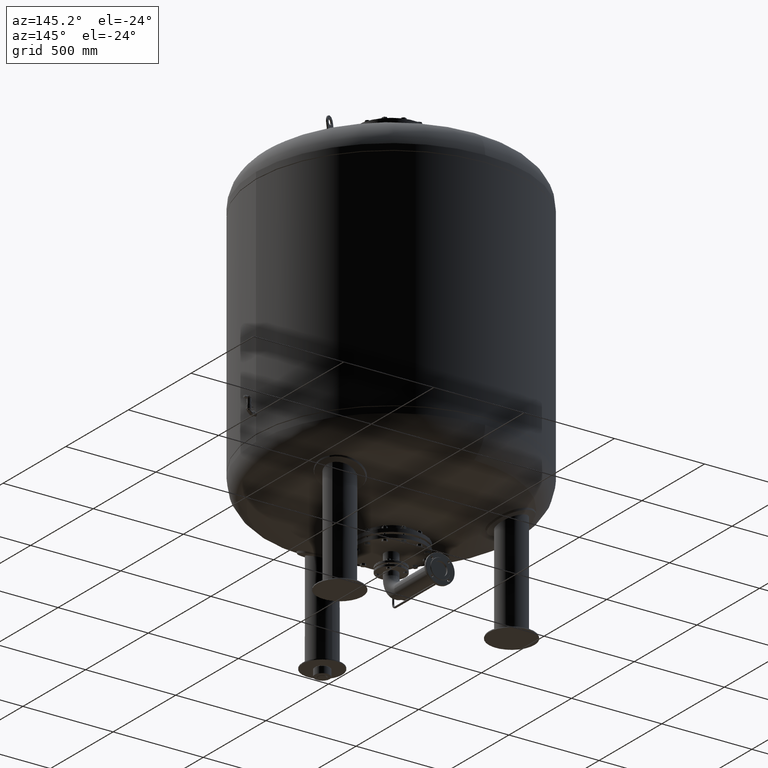
[diagram: clean part render]
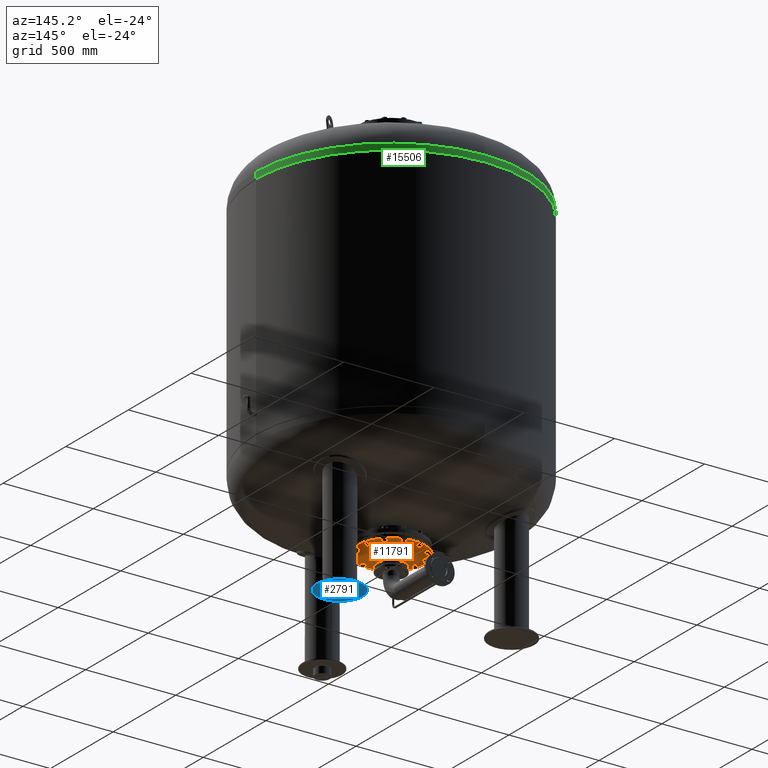
[diagram: same view with three faces highlighted in distinct colors, each labeled with its STEP entity id]
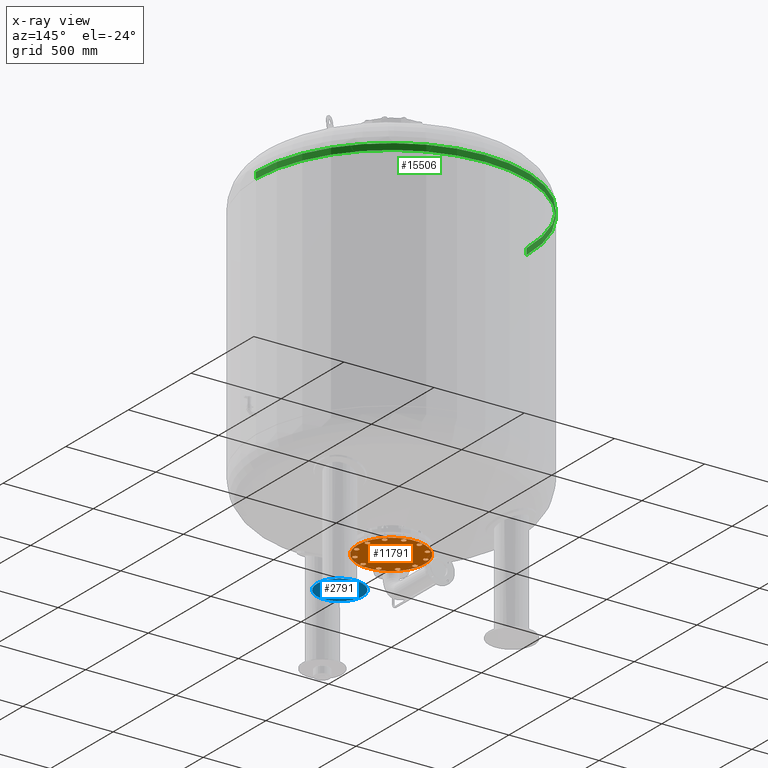
[diagram: x-ray of the same camera — body ghosted, the three highlighted faces saturated]
A machine part, auxiliary view with three faces highlighted in distinct colors.
The next image is the same camera in x-ray (body ghosted, the three faces saturated) — at least one of them is partly hidden behind the body in this view.
Their STEP definitions:

[orange] entity #11791 — the highlighted planar face has unit normal (0, 0, -1).
#3935=CARTESIAN_POINT('',(-38.050000000000018,-4.163799E-015,413.0));
#3936=VERTEX_POINT('',#3935);
#3952=CARTESIAN_POINT('',(38.049999999999983,-8.823426E-015,413.0));
#3953=VERTEX_POINT('',#3952);
#3960=CARTESIAN_POINT('',(-8.604691E-015,-4.163799E-015,413.0));
#3961=DIRECTION('',(0.0,0.0,-1.0));
#3962=DIRECTION('',(-1.0,0.0,0.0));
#3963=AXIS2_PLACEMENT_3D('',#3960,#3961,#3962);
#3964=CIRCLE('',#3963,38.050000000000004);
#3965=EDGE_CURVE('',#3953,#3936,#3964,.T.);
#3975=CARTESIAN_POINT('',(-187.500000000000000,-4.163799E-015,413.000000000000110));
#3976=VERTEX_POINT('',#3975);
#3985=CARTESIAN_POINT('',(187.500000000000000,-2.712517E-014,413.000000000000110));
#3986=VERTEX_POINT('',#3985);
#3987=CARTESIAN_POINT('',(-8.604691E-015,-4.163799E-015,413.000000000000110));
#3988=DIRECTION('',(0.0,0.0,-1.0));
#3989=DIRECTION('',(-1.0,0.0,0.0));
#3990=AXIS2_PLACEMENT_3D('',#3987,#3988,#3989);
#3991=CIRCLE('',#3990,187.500000000000000);
#3992=EDGE_CURVE('',#3986,#3976,#3991,.T.);
#5965=CARTESIAN_POINT('',(43.352190054672320,-175.648982363969960,413.0));
#5966=VERTEX_POINT('',#5965);
#5967=CARTESIAN_POINT('',(55.352190054672313,-168.720779133694460,413.0));
#5968=VERTEX_POINT('',#5967);
#5969=CARTESIAN_POINT('',(43.352190054672320,-175.648982363969960,413.0));
#5970=DIRECTION('',(0.866025403784439,0.500000000000000,0.0));
#5971=VECTOR('',#5970,13.856406460551009);
#5972=LINE('',#5969,#5971);
#5973=EDGE_CURVE('',#5966,#5968,#5972,.T.);
#6005=CARTESIAN_POINT('',(31.352190054672334,-168.720779133694460,413.0));
#6006=VERTEX_POINT('',#6005);
#6007=CARTESIAN_POINT('',(31.352190054672334,-168.720779133694460,413.0));
#6008=DIRECTION('',(0.866025403784439,-0.500000000000000,0.0));
#6009=VECTOR('',#6008,13.856406460551002);
#6010=LINE('',#6007,#6009);
#6011=EDGE_CURVE('',#6006,#5966,#6010,.T.);
#6036=CARTESIAN_POINT('',(31.352190054672349,-154.864372673143440,413.0));
#6037=VERTEX_POINT('',#6036);
#6038=CARTESIAN_POINT('',(31.352190054672349,-154.864372673143440,413.0));
#6039=DIRECTION('',(0.0,-1.0,0.0));
#6040=VECTOR('',#6039,13.856406460551028);
#6041=LINE('',#6038,#6040);
#6042=EDGE_CURVE('',#6037,#6006,#6041,.T.);
#6067=CARTESIAN_POINT('',(43.352190054672320,-147.936169442867940,413.0));
#6068=VERTEX_POINT('',#6067);
#6069=CARTESIAN_POINT('',(43.352190054672320,-147.936169442867940,413.0));
#6070=DIRECTION('',(-0.866025403784438,-0.500000000000000,0.0));
#6071=VECTOR('',#6070,13.856406460550989);
#6072=LINE('',#6069,#6071);
#6073=EDGE_CURVE('',#6068,#6037,#6072,.T.);
#6098=CARTESIAN_POINT('',(55.352190054672313,-154.864372673143440,413.0));
#6099=VERTEX_POINT('',#6098);
#6100=CARTESIAN_POINT('',(55.352190054672313,-168.720779133694460,413.0));
#6101=DIRECTION('',(0.0,1.0,0.0));
#6102=VECTOR('',#6101,13.856406460551028);
#6103=LINE('',#6100,#6102);
#6104=EDGE_CURVE('',#5968,#6099,#6103,.T.);
#6129=CARTESIAN_POINT('',(55.352190054672313,-154.864372673143440,413.0));
#6130=DIRECTION('',(-0.866025403784439,0.500000000000000,0.0));
#6131=VECTOR('',#6130,13.856406460551009);
#6132=LINE('',#6129,#6131);
#6133=EDGE_CURVE('',#6099,#6068,#6132,.T.);
#6439=CARTESIAN_POINT('',(125.368589079022360,-130.440385848746640,413.0));
#6440=VERTEX_POINT('',#6439);
#6441=CARTESIAN_POINT('',(132.296792309297840,-118.440385848746640,413.0));
#6442=VERTEX_POINT('',#6441);
#6443=CARTESIAN_POINT('',(125.368589079022360,-130.440385848746640,413.0));
#6444=DIRECTION('',(0.499999999999999,0.866025403784439,0.0));
#6445=VECTOR('',#6444,13.856406460551007);
#6446=LINE('',#6443,#6445);
#6447=EDGE_CURVE('',#6440,#6442,#6446,.T.);
#6479=CARTESIAN_POINT('',(111.512182618471340,-130.440385848746640,413.0));
#6480=VERTEX_POINT('',#6479);
#6481=CARTESIAN_POINT('',(111.512182618471340,-130.440385848746640,413.0));
#6482=DIRECTION('',(1.0,0.0,0.0));
#6483=VECTOR('',#6482,13.856406460551014);
#6484=LINE('',#6481,#6483);
#6485=EDGE_CURVE('',#6480,#6440,#6484,.T.);
#6510=CARTESIAN_POINT('',(104.583979388195840,-118.440385848746660,413.0));
#6511=VERTEX_POINT('',#6510);
#6512=CARTESIAN_POINT('',(104.583979388195840,-118.440385848746660,413.0));
#6513=DIRECTION('',(0.500000000000000,-0.866025403784439,0.0));
#6514=VECTOR('',#6513,13.856406460551002);
#6515=LINE('',#6512,#6514);
#6516=EDGE_CURVE('',#6511,#6480,#6515,.T.);
#6541=CARTESIAN_POINT('',(111.512182618471340,-106.440385848746640,413.0));
#6542=VERTEX_POINT('',#6541);
#6543=CARTESIAN_POINT('',(111.512182618471340,-106.440385848746640,413.0));
#6544=DIRECTION('',(-0.499999999999999,-0.866025403784439,0.0));
#6545=VECTOR('',#6544,13.856406460551026);
#6546=LINE('',#6543,#6545);
#6547=EDGE_CURVE('',#6542,#6511,#6546,.T.);
#6572=CARTESIAN_POINT('',(125.368589079022340,-106.440385848746640,413.0));
#6573=VERTEX_POINT('',#6572);
#6574=CARTESIAN_POINT('',(132.296792309297840,-118.440385848746640,413.0));
#6575=DIRECTION('',(-0.500000000000000,0.866025403784439,0.0));
#6576=VECTOR('',#6575,13.856406460551014);
#6577=LINE('',#6574,#6576);
#6578=EDGE_CURVE('',#6442,#6573,#6577,.T.);
#6603=CARTESIAN_POINT('',(125.368589079022340,-106.440385848746640,413.0));
#6604=DIRECTION('',(-1.0,0.0,0.0));
#6605=VECTOR('',#6604,13.856406460551000);
#6606=LINE('',#6603,#6605);
#6607=EDGE_CURVE('',#6573,#6542,#6606,.T.);
#6913=CARTESIAN_POINT('',(173.792575903418990,-50.280393284947714,413.0));
#6914=VERTEX_POINT('',#6913);
#6915=CARTESIAN_POINT('',(173.792575903418990,-36.423986824396700,413.0));
#6916=VERTEX_POINT('',#6915);
#6917=CARTESIAN_POINT('',(173.792575903418990,-50.280393284947714,413.0));
#6918=DIRECTION('',(0.0,1.0,0.0));
#6919=VECTOR('',#6918,13.856406460551014);
#6920=LINE('',#6917,#6919);
#6921=EDGE_CURVE('',#6914,#6916,#6920,.T.);
#6953=CARTESIAN_POINT('',(161.792575903418990,-57.208596515223185,413.0));
#6954=VERTEX_POINT('',#6953);
#6955=CARTESIAN_POINT('',(161.792575903418990,-57.208596515223185,413.0));
#6956=DIRECTION('',(0.866025403784440,0.499999999999998,0.0));
#6957=VECTOR('',#6956,13.856406460551000);
#6958=LINE('',#6955,#6957);
#6959=EDGE_CURVE('',#6954,#6914,#6958,.T.);
#6984=CARTESIAN_POINT('',(149.792575903418990,-50.280393284947706,413.0));
#6985=VERTEX_POINT('',#6984);
#6986=CARTESIAN_POINT('',(149.792575903418990,-50.280393284947706,413.0));
#6987=DIRECTION('',(0.866025403784440,-0.499999999999998,0.0));
#6988=VECTOR('',#6987,13.856406460551003);
#6989=LINE('',#6986,#6988);
#6990=EDGE_CURVE('',#6985,#6954,#6989,.T.);
#7015=CARTESIAN_POINT('',(149.792575903419020,-36.423986824396692,413.0));
#7016=VERTEX_POINT('',#7015);
#7017=CARTESIAN_POINT('',(149.792575903419020,-36.423986824396692,413.0));
#7018=DIRECTION('',(0.0,-1.0,0.0));
#7019=VECTOR('',#7018,13.856406460551014);
#7020=LINE('',#7017,#7019);
#7021=EDGE_CURVE('',#7016,#6985,#7020,.T.);
#7046=CARTESIAN_POINT('',(161.792575903418990,-29.495783594121182,413.0));
#7047=VERTEX_POINT('',#7046);
#7048=CARTESIAN_POINT('',(173.792575903418990,-36.423986824396700,413.0));
#7049=DIRECTION('',(-0.866025403784438,0.500000000000000,0.0));
#7050=VECTOR('',#7049,13.856406460551023);
#7051=LINE('',#7048,#7050);
#7052=EDGE_CURVE('',#6916,#7047,#7051,.T.);
#7077=CARTESIAN_POINT('',(161.792575903418990,-29.495783594121182,413.0));
#7078=DIRECTION('',(-0.866025403784438,-0.500000000000001,0.0));
#7079=VECTOR('',#7078,13.856406460550994);
#7080=LINE('',#7077,#7079);
#7081=EDGE_CURVE('',#7047,#7016,#7080,.T.);
#7387=CARTESIAN_POINT('',(175.648982363969960,43.352190054672327,413.0));
#7388=VERTEX_POINT('',#7387);
#7389=CARTESIAN_POINT('',(168.720779133694460,55.352190054672320,413.0));
#7390=VERTEX_POINT('',#7389);
#7391=CARTESIAN_POINT('',(175.648982363969960,43.352190054672327,413.0));
#7392=DIRECTION('',(-0.500000000000000,0.866025403784439,0.0));
#7393=VECTOR('',#7392,13.856406460551009);
#7394=LINE('',#7391,#7393);
#7395=EDGE_CURVE('',#7388,#7390,#7394,.T.);
#7427=CARTESIAN_POINT('',(168.720779133694460,31.352190054672338,413.0));
#7428=VERTEX_POINT('',#7427);
#7429=CARTESIAN_POINT('',(168.720779133694460,31.352190054672338,413.0));
#7430=DIRECTION('',(0.500000000000000,0.866025403784439,0.0));
#7431=VECTOR('',#7430,13.856406460551003);
#7432=LINE('',#7429,#7431);
#7433=EDGE_CURVE('',#7428,#7388,#7432,.T.);
#7458=CARTESIAN_POINT('',(154.864372673143440,31.352190054672352,413.0));
#7459=VERTEX_POINT('',#7458);
#7460=CARTESIAN_POINT('',(154.864372673143440,31.352190054672352,413.0));
#7461=DIRECTION('',(1.0,0.0,0.0));
#7462=VECTOR('',#7461,13.856406460551028);
#7463=LINE('',#7460,#7462);
#7464=EDGE_CURVE('',#7459,#7428,#7463,.T.);
#7489=CARTESIAN_POINT('',(147.936169442867940,43.352190054672327,413.0));
#7490=VERTEX_POINT('',#7489);
#7491=CARTESIAN_POINT('',(147.936169442867940,43.352190054672327,413.0));
#7492=DIRECTION('',(0.500000000000000,-0.866025403784439,0.0));
#7493=VECTOR('',#7492,13.856406460550991);
#7494=LINE('',#7491,#7493);
#7495=EDGE_CURVE('',#7490,#7459,#7494,.T.);
#7520=CARTESIAN_POINT('',(154.864372673143440,55.352190054672320,413.0));
#7521=VERTEX_POINT('',#7520);
#7522=CARTESIAN_POINT('',(168.720779133694460,55.352190054672320,413.0));
#7523=DIRECTION('',(-1.0,0.0,0.0));
#7524=VECTOR('',#7523,13.856406460551028);
#7525=LINE('',#7522,#7524);
#7526=EDGE_CURVE('',#7390,#7521,#7525,.T.);
#7551=CARTESIAN_POINT('',(154.864372673143440,55.352190054672320,413.0));
#7552=DIRECTION('',(-0.500000000000000,-0.866025403784439,0.0));
#7553=VECTOR('',#7552,13.856406460551009);
#7554=LINE('',#7551,#7553);
#7555=EDGE_CURVE('',#7521,#7490,#7554,.T.);
#7861=CARTESIAN_POINT('',(130.440385848746670,125.368589079022270,413.0));
#7862=VERTEX_POINT('',#7861);
#7863=CARTESIAN_POINT('',(118.440385848746690,132.296792309297790,413.0));
#7864=VERTEX_POINT('',#7863);
#7865=CARTESIAN_POINT('',(130.440385848746670,125.368589079022270,413.0));
#7866=DIRECTION('',(-0.866025403784438,0.500000000000001,0.0));
#7867=VECTOR('',#7866,13.856406460551009);
#7868=LINE('',#7865,#7867);
#7869=EDGE_CURVE('',#7862,#7864,#7868,.T.);
#7901=CARTESIAN_POINT('',(130.440385848746670,111.512182618471270,413.0));
#7902=VERTEX_POINT('',#7901);
#7903=CARTESIAN_POINT('',(130.440385848746670,111.512182618471270,413.0));
#7904=DIRECTION('',(0.0,1.0,0.0));
#7905=VECTOR('',#7904,13.856406460551000);
#7906=LINE('',#7903,#7905);
#7907=EDGE_CURVE('',#7902,#7862,#7906,.T.);
#7932=CARTESIAN_POINT('',(118.440385848746700,104.583979388195790,413.0));
#7933=VERTEX_POINT('',#7932);
#7934=CARTESIAN_POINT('',(118.440385848746700,104.583979388195790,413.0));
#7935=DIRECTION('',(0.866025403784439,0.500000000000000,0.0));
#7936=VECTOR('',#7935,13.856406460550982);
#7937=LINE('',#7934,#7936);
#7938=EDGE_CURVE('',#7933,#7902,#7937,.T.);
#7963=CARTESIAN_POINT('',(106.440385848746700,111.512182618471290,413.0));
#7964=VERTEX_POINT('',#7963);
#7965=CARTESIAN_POINT('',(106.440385848746700,111.512182618471290,413.0));
#7966=DIRECTION('',(0.866025403784439,-0.500000000000000,0.0));
#7967=VECTOR('',#7966,13.856406460551014);
#7968=LINE('',#7965,#7967);
#7969=EDGE_CURVE('',#7964,#7933,#7968,.T.);
#7994=CARTESIAN_POINT('',(106.440385848746700,125.368589079022270,413.0));
#7995=VERTEX_POINT('',#7994);
#7996=CARTESIAN_POINT('',(118.440385848746690,132.296792309297790,413.0));
#7997=DIRECTION('',(-0.866025403784438,-0.500000000000001,0.0));
#7998=VECTOR('',#7997,13.856406460551009);
#7999=LINE('',#7996,#7998);
#8000=EDGE_CURVE('',#7864,#7995,#7999,.T.);
#8025=CARTESIAN_POINT('',(106.440385848746700,125.368589079022270,413.0));
#8026=DIRECTION('',(0.0,-1.0,0.0));
#8027=VECTOR('',#8026,13.856406460550986);
#8028=LINE('',#8025,#8027);
#8029=EDGE_CURVE('',#7995,#7964,#8028,.T.);
#8335=CARTESIAN_POINT('',(50.280393284947706,173.792575903418990,413.0));
#8336=VERTEX_POINT('',#8335);
#8337=CARTESIAN_POINT('',(36.423986824396678,173.792575903418940,413.0));
#8338=VERTEX_POINT('',#8337);
#8339=CARTESIAN_POINT('',(50.280393284947706,173.792575903418990,413.0));
#8340=DIRECTION('',(-1.0,0.0,0.0));
#8341=VECTOR('',#8340,13.856406460551028);
#8342=LINE('',#8339,#8341);
#8343=EDGE_CURVE('',#8336,#8338,#8342,.T.);
#8375=CARTESIAN_POINT('',(57.208596515223178,161.792575903418990,413.0));
#8376=VERTEX_POINT('',#8375);
#8377=CARTESIAN_POINT('',(57.208596515223178,161.792575903418990,413.0));
#8378=DIRECTION('',(-0.499999999999998,0.866025403784440,0.0));
#8379=VECTOR('',#8378,13.856406460551000);
#8380=LINE('',#8377,#8379);
#8381=EDGE_CURVE('',#8376,#8336,#8380,.T.);
#8406=CARTESIAN_POINT('',(50.280393284947692,149.792575903418990,413.0));
#8407=VERTEX_POINT('',#8406);
#8408=CARTESIAN_POINT('',(50.280393284947692,149.792575903418990,413.0));
#8409=DIRECTION('',(0.499999999999999,0.866025403784439,0.0));
#8410=VECTOR('',#8409,13.856406460551007);
#8411=LINE('',#8408,#8410);
#8412=EDGE_CURVE('',#8407,#8376,#8411,.T.);
#8437=CARTESIAN_POINT('',(36.423986824396678,149.792575903418990,413.0));
#8438=VERTEX_POINT('',#8437);
#8439=CARTESIAN_POINT('',(36.423986824396678,149.792575903418990,413.0));
#8440=DIRECTION('',(1.0,0.0,0.0));
#8441=VECTOR('',#8440,13.856406460551014);
#8442=LINE('',#8439,#8441);
#8443=EDGE_CURVE('',#8438,#8407,#8442,.T.);
#8468=CARTESIAN_POINT('',(29.495783594121185,161.792575903418990,413.0));
#8469=VERTEX_POINT('',#8468);
#8470=CARTESIAN_POINT('',(36.423986824396678,173.792575903418940,413.0));
#8471=DIRECTION('',(-0.500000000000001,-0.866025403784438,0.0));
#8472=VECTOR('',#8471,13.856406460550961);
#8473=LINE('',#8470,#8472);
#8474=EDGE_CURVE('',#8338,#8469,#8473,.T.);
#8499=CARTESIAN_POINT('',(29.495783594121185,161.792575903418990,413.0));
#8500=DIRECTION('',(0.499999999999999,-0.866025403784439,0.0));
#8501=VECTOR('',#8500,13.856406460551010);
#8502=LINE('',#8499,#8501);
#8503=EDGE_CURVE('',#8469,#8438,#8502,.T.);
#8809=CARTESIAN_POINT('',(-43.352190054672327,175.648982363969990,413.0));
#8810=VERTEX_POINT('',#8809);
#8811=CARTESIAN_POINT('',(-55.352190054672306,168.720779133694460,413.0));
#8812=VERTEX_POINT('',#8811);
#8813=CARTESIAN_POINT('',(-43.352190054672327,175.648982363969990,413.0));
#8814=DIRECTION('',(-0.866025403784438,-0.500000000000002,0.0));
#8815=VECTOR('',#8814,13.856406460551009);
#8816=LINE('',#8813,#8815);
#8817=EDGE_CURVE('',#8810,#8812,#8816,.T.);
#8849=CARTESIAN_POINT('',(-31.352190054672313,168.720779133694490,413.0));
#8850=VERTEX_POINT('',#8849);
#8851=CARTESIAN_POINT('',(-31.352190054672313,168.720779133694490,413.0));
#8852=DIRECTION('',(-0.866025403784439,0.499999999999999,0.0));
#8853=VECTOR('',#8852,13.856406460551026);
#8854=LINE('',#8851,#8853);
#8855=EDGE_CURVE('',#8850,#8810,#8854,.T.);
#8880=CARTESIAN_POINT('',(-31.352190054672327,154.864372673143460,413.0));
#8881=VERTEX_POINT('',#8880);
#8882=CARTESIAN_POINT('',(-31.352190054672327,154.864372673143460,413.0));
#8883=DIRECTION('',(0.0,1.0,0.0));
#8884=VECTOR('',#8883,13.856406460551028);
#8885=LINE('',#8882,#8884);
#8886=EDGE_CURVE('',#8881,#8850,#8885,.T.);
#8911=CARTESIAN_POINT('',(-43.352190054672334,147.936169442867940,413.0));
#8912=VERTEX_POINT('',#8911);
#8913=CARTESIAN_POINT('',(-43.352190054672334,147.936169442867940,413.0));
#8914=DIRECTION('',(0.866025403784438,0.500000000000001,0.0));
#8915=VECTOR('',#8914,13.856406460551034);
#8916=LINE('',#8913,#8915);
#8917=EDGE_CURVE('',#8912,#8881,#8916,.T.);
#8942=CARTESIAN_POINT('',(-55.352190054672306,154.864372673143460,413.0));
#8943=VERTEX_POINT('',#8942);
#8944=CARTESIAN_POINT('',(-55.352190054672306,168.720779133694460,413.0));
#8945=DIRECTION('',(0.0,-1.0,0.0));
#8946=VECTOR('',#8945,13.856406460551000);
#8947=LINE('',#8944,#8946);
#8948=EDGE_CURVE('',#8812,#8943,#8947,.T.);
#8973=CARTESIAN_POINT('',(-55.352190054672306,154.864372673143460,413.0));
#8974=DIRECTION('',(0.866025403784437,-0.500000000000002,0.0));
#8975=VECTOR('',#8974,13.856406460551003);
#8976=LINE('',#8973,#8975);
#8977=EDGE_CURVE('',#8943,#8912,#8976,.T.);
#9283=CARTESIAN_POINT('',(-125.368589079022270,130.440385848746700,413.0));
#9284=VERTEX_POINT('',#9283);
#9285=CARTESIAN_POINT('',(-132.296792309297790,118.440385848746690,413.0));
#9286=VERTEX_POINT('',#9285);
#9287=CARTESIAN_POINT('',(-125.368589079022270,130.440385848746700,413.0));
#9288=DIRECTION('',(-0.500000000000000,-0.866025403784439,0.0));
#9289=VECTOR('',#9288,13.856406460551034);
#9290=LINE('',#9287,#9289);
#9291=EDGE_CURVE('',#9284,#9286,#9290,.T.);
#9323=CARTESIAN_POINT('',(-111.512182618471270,130.440385848746670,413.0));
#9324=VERTEX_POINT('',#9323);
#9325=CARTESIAN_POINT('',(-111.512182618471270,130.440385848746670,413.0));
#9326=DIRECTION('',(-1.0,0.0,0.0));
#9327=VECTOR('',#9326,13.856406460551000);
#9328=LINE('',#9325,#9327);
#9329=EDGE_CURVE('',#9324,#9284,#9328,.T.);
#9354=CARTESIAN_POINT('',(-104.583979388195760,118.440385848746690,413.0));
#9355=VERTEX_POINT('',#9354);
#9356=CARTESIAN_POINT('',(-104.583979388195760,118.440385848746690,413.0));
#9357=DIRECTION('',(-0.500000000000001,0.866025403784438,0.0));
#9358=VECTOR('',#9357,13.856406460551009);
#9359=LINE('',#9356,#9358);
#9360=EDGE_CURVE('',#9355,#9324,#9359,.T.);
#9385=CARTESIAN_POINT('',(-111.512182618471270,106.440385848746700,413.0));
#9386=VERTEX_POINT('',#9385);
#9387=CARTESIAN_POINT('',(-111.512182618471270,106.440385848746700,413.0));
#9388=DIRECTION('',(0.500000000000001,0.866025403784438,0.0));
#9389=VECTOR('',#9388,13.856406460551009);
#9390=LINE('',#9387,#9389);
#9391=EDGE_CURVE('',#9386,#9355,#9390,.T.);
#9416=CARTESIAN_POINT('',(-125.368589079022270,106.440385848746700,413.0));
#9417=VERTEX_POINT('',#9416);
#9418=CARTESIAN_POINT('',(-132.296792309297790,118.440385848746690,413.0));
#9419=DIRECTION('',(0.500000000000001,-0.866025403784438,0.0));
#9420=VECTOR('',#9419,13.856406460551009);
#9421=LINE('',#9418,#9420);
#9422=EDGE_CURVE('',#9286,#9417,#9421,.T.);
#9447=CARTESIAN_POINT('',(-125.368589079022270,106.440385848746700,413.0));
#9448=DIRECTION('',(1.0,0.0,0.0));
#9449=VECTOR('',#9448,13.856406460551000);
#9450=LINE('',#9447,#9449);
#9451=EDGE_CURVE('',#9417,#9386,#9450,.T.);
#9757=CARTESIAN_POINT('',(-173.792575903418960,50.280393284947714,413.0));
#9758=VERTEX_POINT('',#9757);
#9759=CARTESIAN_POINT('',(-173.792575903418960,36.423986824396714,413.0));
#9760=VERTEX_POINT('',#9759);
#9761=CARTESIAN_POINT('',(-173.792575903418960,50.280393284947714,413.0));
#9762=DIRECTION('',(0.0,-1.0,0.0));
#9763=VECTOR('',#9762,13.856406460551000);
#9764=LINE('',#9761,#9763);
#9765=EDGE_CURVE('',#9758,#9760,#9764,.T.);
#9797=CARTESIAN_POINT('',(-161.792575903419020,57.208596515223206,413.0));
#9798=VERTEX_POINT('',#9797);
#9799=CARTESIAN_POINT('',(-161.792575903419020,57.208596515223206,413.0));
#9800=DIRECTION('',(-0.866025403784438,-0.500000000000001,0.0));
#9801=VECTOR('',#9800,13.856406460550961);
#9802=LINE('',#9799,#9801);
#9803=EDGE_CURVE('',#9798,#9758,#9802,.T.);
#9828=CARTESIAN_POINT('',(-149.792575903418990,50.280393284947714,413.0));
#9829=VERTEX_POINT('',#9828);
#9830=CARTESIAN_POINT('',(-149.792575903418990,50.280393284947714,413.0));
#9831=DIRECTION('',(-0.866025403784440,0.499999999999998,0.0));
#9832=VECTOR('',#9831,13.856406460551035);
#9833=LINE('',#9830,#9832);
#9834=EDGE_CURVE('',#9829,#9798,#9833,.T.);
#9859=CARTESIAN_POINT('',(-149.792575903418990,36.423986824396685,413.0));
#9860=VERTEX_POINT('',#9859);
#9861=CARTESIAN_POINT('',(-149.792575903418990,36.423986824396685,413.0));
#9862=DIRECTION('',(0.0,1.0,0.0));
#9863=VECTOR('',#9862,13.856406460551028);
#9864=LINE('',#9861,#9863);
#9865=EDGE_CURVE('',#9860,#9829,#9864,.T.);
#9890=CARTESIAN_POINT('',(-161.792575903418990,29.495783594121210,413.0));
#9891=VERTEX_POINT('',#9890);
#9892=CARTESIAN_POINT('',(-173.792575903418960,36.423986824396714,413.0));
#9893=DIRECTION('',(0.866025403784438,-0.500000000000001,0.0));
#9894=VECTOR('',#9893,13.856406460550991);
#9895=LINE('',#9892,#9894);
#9896=EDGE_CURVE('',#9760,#9891,#9895,.T.);
#9921=CARTESIAN_POINT('',(-161.792575903418990,29.495783594121210,413.0));
#9922=DIRECTION('',(0.866025403784440,0.499999999999998,0.0));
#9923=VECTOR('',#9922,13.856406460551002);
#9924=LINE('',#9921,#9923);
#9925=EDGE_CURVE('',#9891,#9860,#9924,.T.);
#10231=CARTESIAN_POINT('',(-175.648982363969990,-43.352190054672270,413.0));
#10232=VERTEX_POINT('',#10231);
#10233=CARTESIAN_POINT('',(-168.720779133694490,-55.352190054672263,413.0));
#10234=VERTEX_POINT('',#10233);
#10235=CARTESIAN_POINT('',(-175.648982363969990,-43.352190054672270,413.0));
#10236=DIRECTION('',(0.500000000000000,-0.866025403784439,0.0));
#10237=VECTOR('',#10236,13.856406460551009);
#10238=LINE('',#10235,#10237);
#10239=EDGE_CURVE('',#10232,#10234,#10238,.T.);
#10271=CARTESIAN_POINT('',(-168.720779133694490,-31.352190054672281,413.0));
#10272=VERTEX_POINT('',#10271);
#10273=CARTESIAN_POINT('',(-168.720779133694490,-31.352190054672281,413.0));
#10274=DIRECTION('',(-0.500000000000000,-0.866025403784439,0.0));
#10275=VECTOR('',#10274,13.856406460551003);
#10276=LINE('',#10273,#10275);
#10277=EDGE_CURVE('',#10272,#10232,#10276,.T.);
#10302=CARTESIAN_POINT('',(-154.864372673143460,-31.352190054672299,413.0));
#10303=VERTEX_POINT('',#10302);
#10304=CARTESIAN_POINT('',(-154.864372673143460,-31.352190054672299,413.0));
#10305=DIRECTION('',(-1.0,0.0,0.0));
#10306=VECTOR('',#10305,13.856406460551028);
#10307=LINE('',#10304,#10306);
#10308=EDGE_CURVE('',#10303,#10272,#10307,.T.);
#10333=CARTESIAN_POINT('',(-147.936169442867960,-43.352190054672299,413.0));
#10334=VERTEX_POINT('',#10333);
#10335=CARTESIAN_POINT('',(-147.936169442867960,-43.352190054672299,413.0));
#10336=DIRECTION('',(-0.500000000000000,0.866025403784439,0.0));
#10337=VECTOR('',#10336,13.856406460551014);
#10338=LINE('',#10335,#10337);
#10339=EDGE_CURVE('',#10334,#10303,#10338,.T.);
#10364=CARTESIAN_POINT('',(-154.864372673143460,-55.352190054672263,413.0));
#10365=VERTEX_POINT('',#10364);
#10366=CARTESIAN_POINT('',(-168.720779133694490,-55.352190054672263,413.0));
#10367=DIRECTION('',(1.0,0.0,0.0));
#10368=VECTOR('',#10367,13.856406460551028);
#10369=LINE('',#10366,#10368);
#10370=EDGE_CURVE('',#10234,#10365,#10369,.T.);
#10395=CARTESIAN_POINT('',(-154.864372673143460,-55.352190054672263,413.0));
#10396=DIRECTION('',(0.500000000000001,0.866025403784438,0.0));
#10397=VECTOR('',#10396,13.856406460550984);
#10398=LINE('',#10395,#10397);
#10399=EDGE_CURVE('',#10365,#10334,#10398,.T.);
#10705=CARTESIAN_POINT('',(-130.440385848746730,-125.368589079022260,413.0));
#10706=VERTEX_POINT('',#10705);
#10707=CARTESIAN_POINT('',(-118.440385848746730,-132.296792309297760,413.0));
#10708=VERTEX_POINT('',#10707);
#10709=CARTESIAN_POINT('',(-130.440385848746730,-125.368589079022260,413.0));
#10710=DIRECTION('',(0.866025403784439,-0.500000000000000,0.0));
#10711=VECTOR('',#10710,13.856406460551014);
#10712=LINE('',#10709,#10711);
#10713=EDGE_CURVE('',#10706,#10708,#10712,.T.);
#10745=CARTESIAN_POINT('',(-130.440385848746700,-111.512182618471260,413.0));
#10746=VERTEX_POINT('',#10745);
#10747=CARTESIAN_POINT('',(-130.440385848746700,-111.512182618471260,413.0));
#10748=DIRECTION('',(0.0,-1.0,0.0));
#10749=VECTOR('',#10748,13.856406460551000);
#10750=LINE('',#10747,#10749);
#10751=EDGE_CURVE('',#10746,#10706,#10750,.T.);
#10776=CARTESIAN_POINT('',(-118.440385848746700,-104.583979388195760,413.0));
#10777=VERTEX_POINT('',#10776);
#10778=CARTESIAN_POINT('',(-118.440385848746700,-104.583979388195760,413.0));
#10779=DIRECTION('',(-0.866025403784439,-0.500000000000000,0.0));
#10780=VECTOR('',#10779,13.856406460551014);
#10781=LINE('',#10778,#10780);
#10782=EDGE_CURVE('',#10777,#10746,#10781,.T.);
#10807=CARTESIAN_POINT('',(-106.440385848746710,-111.512182618471270,413.0));
#10808=VERTEX_POINT('',#10807);
#10809=CARTESIAN_POINT('',(-106.440385848746710,-111.512182618471270,413.0));
#10810=DIRECTION('',(-0.866025403784438,0.500000000000001,0.0));
#10811=VECTOR('',#10810,13.856406460551009);
#10812=LINE('',#10809,#10811);
#10813=EDGE_CURVE('',#10808,#10777,#10812,.T.);
#10838=CARTESIAN_POINT('',(-106.440385848746710,-125.368589079022260,413.0));
#10839=VERTEX_POINT('',#10838);
#10840=CARTESIAN_POINT('',(-118.440385848746730,-132.296792309297760,413.0));
#10841=DIRECTION('',(0.866025403784439,0.499999999999999,0.0));
#10842=VECTOR('',#10841,13.856406460551026);
#10843=LINE('',#10840,#10842);
#10844=EDGE_CURVE('',#10708,#10839,#10843,.T.);
#10869=CARTESIAN_POINT('',(-106.440385848746710,-125.368589079022260,413.0));
#10870=DIRECTION('',(0.0,1.0,0.0));
#10871=VECTOR('',#10870,13.856406460550986);
#10872=LINE('',#10869,#10871);
#10873=EDGE_CURVE('',#10839,#10808,#10872,.T.);
#11475=CARTESIAN_POINT('',(-50.280393284947756,-173.792575903418960,413.0));
#11476=VERTEX_POINT('',#11475);
#11477=CARTESIAN_POINT('',(-36.423986824396742,-173.792575903418960,413.0));
#11478=VERTEX_POINT('',#11477);
#11479=CARTESIAN_POINT('',(-50.280393284947756,-173.792575903418960,413.0));
#11480=DIRECTION('',(1.0,0.0,0.0));
#11481=VECTOR('',#11480,13.856406460551014);
#11482=LINE('',#11479,#11481);
#11483=EDGE_CURVE('',#11476,#11478,#11482,.T.);
#11515=CARTESIAN_POINT('',(-57.208596515223249,-161.792575903418990,413.0));
#11516=VERTEX_POINT('',#11515);
#11517=CARTESIAN_POINT('',(-57.208596515223249,-161.792575903418990,413.0));
#11518=DIRECTION('',(0.500000000000000,-0.866025403784439,0.0));
#11519=VECTOR('',#11518,13.856406460550986);
#11520=LINE('',#11517,#11519);
#11521=EDGE_CURVE('',#11516,#11476,#11520,.T.);
#11546=CARTESIAN_POINT('',(-50.280393284947735,-149.792575903418990,413.0));
#11547=VERTEX_POINT('',#11546);
#11548=CARTESIAN_POINT('',(-50.280393284947735,-149.792575903418990,413.0));
#11549=DIRECTION('',(-0.500000000000000,-0.866025403784438,0.0));
#11550=VECTOR('',#11549,13.856406460551021);
#11551=LINE('',#11548,#11550);
#11552=EDGE_CURVE('',#11547,#11516,#11551,.T.);
#11577=CARTESIAN_POINT('',(-36.423986824396721,-149.792575903418990,413.0));
#11578=VERTEX_POINT('',#11577);
#11579=CARTESIAN_POINT('',(-36.423986824396721,-149.792575903418990,413.0));
#11580=DIRECTION('',(-1.0,0.0,0.0));
#11581=VECTOR('',#11580,13.856406460551014);
#11582=LINE('',#11579,#11581);
#11583=EDGE_CURVE('',#11578,#11547,#11582,.T.);
#11608=CARTESIAN_POINT('',(-29.495783594121228,-161.792575903418990,413.0));
#11609=VERTEX_POINT('',#11608);
#11610=CARTESIAN_POINT('',(-36.423986824396742,-173.792575903418960,413.0));
#11611=DIRECTION('',(0.500000000000001,0.866025403784438,0.0));
#11612=VECTOR('',#11611,13.856406460550996);
#11613=LINE('',#11610,#11612);
#11614=EDGE_CURVE('',#11478,#11609,#11613,.T.);
#11639=CARTESIAN_POINT('',(-29.495783594121228,-161.792575903418990,413.0));
#11640=DIRECTION('',(-0.499999999999999,0.866025403784439,0.0));
#11641=VECTOR('',#11640,13.856406460551010);
#11642=LINE('',#11639,#11641);
#11643=EDGE_CURVE('',#11609,#11578,#11642,.T.);
#11670=CARTESIAN_POINT('',(-19.025000000000009,-4.163799E-015,413.0));
#11671=DIRECTION('',(0.0,0.0,-1.0));
#11672=DIRECTION('',(0.0,-1.0,0.0));
#11673=AXIS2_PLACEMENT_3D('',#11670,#11671,#11672);
#11674=PLANE('',#11673);
#11675=CARTESIAN_POINT('',(-8.604691E-015,-4.163799E-015,413.000000000000110));
#11676=DIRECTION('',(0.0,0.0,-1.0));
#11677=DIRECTION('',(-1.0,0.0,0.0));
#11678=AXIS2_PLACEMENT_3D('',#11675,#11676,#11677);
#11679=CIRCLE('',#11678,187.500000000000000);
#11680=EDGE_CURVE('',#3976,#3986,#11679,.T.);
#11681=ORIENTED_EDGE('',*,*,#11680,.T.);
#11682=ORIENTED_EDGE('',*,*,#3992,.T.);
#11683=EDGE_LOOP('',(#11681,#11682));
#11684=FACE_OUTER_BOUND('',#11683,.T.);
#11685=ORIENTED_EDGE('',*,*,#5973,.T.);
#11686=ORIENTED_EDGE('',*,*,#6104,.T.);
#11687=ORIENTED_EDGE('',*,*,#6133,.T.);
#11688=ORIENTED_EDGE('',*,*,#6073,.T.);
#11689=ORIENTED_EDGE('',*,*,#6042,.T.);
#11690=ORIENTED_EDGE('',*,*,#6011,.T.);
#11691=EDGE_LOOP('',(#11685,#11686,#11687,#11688,#11689,#11690));
#11692=FACE_BOUND('',#11691,.T.);
#11693=ORIENTED_EDGE('',*,*,#6447,.T.);
#11694=ORIENTED_EDGE('',*,*,#6578,.T.);
#11695=ORIENTED_EDGE('',*,*,#6607,.T.);
#11696=ORIENTED_EDGE('',*,*,#6547,.T.);
#11697=ORIENTED_EDGE('',*,*,#6516,.T.);
#11698=ORIENTED_EDGE('',*,*,#6485,.T.);
#11699=EDGE_LOOP('',(#11693,#11694,#11695,#11696,#11697,#11698));
#11700=FACE_BOUND('',#11699,.T.);
#11701=ORIENTED_EDGE('',*,*,#6921,.T.);
#11702=ORIENTED_EDGE('',*,*,#7052,.T.);
#11703=ORIENTED_EDGE('',*,*,#7081,.T.);
#11704=ORIENTED_EDGE('',*,*,#7021,.T.);
#11705=ORIENTED_EDGE('',*,*,#6990,.T.);
#11706=ORIENTED_EDGE('',*,*,#6959,.T.);
#11707=EDGE_LOOP('',(#11701,#11702,#11703,#11704,#11705,#11706));
#11708=FACE_BOUND('',#11707,.T.);
#11709=ORIENTED_EDGE('',*,*,#7395,.T.);
#11710=ORIENTED_EDGE('',*,*,#7526,.T.);
#11711=ORIENTED_EDGE('',*,*,#7555,.T.);
#11712=ORIENTED_EDGE('',*,*,#7495,.T.);
#11713=ORIENTED_EDGE('',*,*,#7464,.T.);
#11714=ORIENTED_EDGE('',*,*,#7433,.T.);
#11715=EDGE_LOOP('',(#11709,#11710,#11711,#11712,#11713,#11714));
#11716=FACE_BOUND('',#11715,.T.);
#11717=ORIENTED_EDGE('',*,*,#7869,.T.);
#11718=ORIENTED_EDGE('',*,*,#8000,.T.);
#11719=ORIENTED_EDGE('',*,*,#8029,.T.);
#11720=ORIENTED_EDGE('',*,*,#7969,.T.);
#11721=ORIENTED_EDGE('',*,*,#7938,.T.);
#11722=ORIENTED_EDGE('',*,*,#7907,.T.);
#11723=EDGE_LOOP('',(#11717,#11718,#11719,#11720,#11721,#11722));
#11724=FACE_BOUND('',#11723,.T.);
#11725=ORIENTED_EDGE('',*,*,#8343,.T.);
#11726=ORIENTED_EDGE('',*,*,#8474,.T.);
#11727=ORIENTED_EDGE('',*,*,#8503,.T.);
#11728=ORIENTED_EDGE('',*,*,#8443,.T.);
#11729=ORIENTED_EDGE('',*,*,#8412,.T.);
#11730=ORIENTED_EDGE('',*,*,#8381,.T.);
#11731=EDGE_LOOP('',(#11725,#11726,#11727,#11728,#11729,#11730));
#11732=FACE_BOUND('',#11731,.T.);
#11733=ORIENTED_EDGE('',*,*,#8817,.T.);
#11734=ORIENTED_EDGE('',*,*,#8948,.T.);
#11735=ORIENTED_EDGE('',*,*,#8977,.T.);
#11736=ORIENTED_EDGE('',*,*,#8917,.T.);
#11737=ORIENTED_EDGE('',*,*,#8886,.T.);
#11738=ORIENTED_EDGE('',*,*,#8855,.T.);
#11739=EDGE_LOOP('',(#11733,#11734,#11735,#11736,#11737,#11738));
#11740=FACE_BOUND('',#11739,.T.);
#11741=ORIENTED_EDGE('',*,*,#9291,.T.);
#11742=ORIENTED_EDGE('',*,*,#9422,.T.);
#11743=ORIENTED_EDGE('',*,*,#9451,.T.);
#11744=ORIENTED_EDGE('',*,*,#9391,.T.);
#11745=ORIENTED_EDGE('',*,*,#9360,.T.);
#11746=ORIENTED_EDGE('',*,*,#9329,.T.);
#11747=EDGE_LOOP('',(#11741,#11742,#11743,#11744,#11745,#11746));
#11748=FACE_BOUND('',#11747,.T.);
#11749=ORIENTED_EDGE('',*,*,#9765,.T.);
#11750=ORIENTED_EDGE('',*,*,#9896,.T.);
#11751=ORIENTED_EDGE('',*,*,#9925,.T.);
#11752=ORIENTED_EDGE('',*,*,#9865,.T.);
#11753=ORIENTED_EDGE('',*,*,#9834,.T.);
#11754=ORIENTED_EDGE('',*,*,#9803,.T.);
#11755=EDGE_LOOP('',(#11749,#11750,#11751,#11752,#11753,#11754));
#11756=FACE_BOUND('',#11755,.T.);
#11757=ORIENTED_EDGE('',*,*,#10239,.T.);
#11758=ORIENTED_EDGE('',*,*,#10370,.T.);
#11759=ORIENTED_EDGE('',*,*,#10399,.T.);
#11760=ORIENTED_EDGE('',*,*,#10339,.T.);
#11761=ORIENTED_EDGE('',*,*,#10308,.T.);
#11762=ORIENTED_EDGE('',*,*,#10277,.T.);
#11763=EDGE_LOOP('',(#11757,#11758,#11759,#11760,#11761,#11762));
#11764=FACE_BOUND('',#11763,.T.);
#11765=ORIENTED_EDGE('',*,*,#10713,.T.);
#11766=ORIENTED_EDGE('',*,*,#10844,.T.);
#11767=ORIENTED_EDGE('',*,*,#10873,.T.);
#11768=ORIENTED_EDGE('',*,*,#10813,.T.);
#11769=ORIENTED_EDGE('',*,*,#10782,.T.);
#11770=ORIENTED_EDGE('',*,*,#10751,.T.);
#11771=EDGE_LOOP('',(#11765,#11766,#11767,#11768,#11769,#11770));
#11772=FACE_BOUND('',#11771,.T.);
#11773=ORIENTED_EDGE('',*,*,#11483,.T.);
#11774=ORIENTED_EDGE('',*,*,#11614,.T.);
#11775=ORIENTED_EDGE('',*,*,#11643,.T.);
#11776=ORIENTED_EDGE('',*,*,#11583,.T.);
#11777=ORIENTED_EDGE('',*,*,#11552,.T.);
#11778=ORIENTED_EDGE('',*,*,#11521,.T.);
#11779=EDGE_LOOP('',(#11773,#11774,#11775,#11776,#11777,#11778));
#11780=FACE_BOUND('',#11779,.T.);
#11781=CARTESIAN_POINT('',(-8.604691E-015,-4.163799E-015,413.0));
#11782=DIRECTION('',(0.0,0.0,-1.0));
#11783=DIRECTION('',(-1.0,0.0,0.0));
#11784=AXIS2_PLACEMENT_3D('',#11781,#11782,#11783);
#11785=CIRCLE('',#11784,38.050000000000004);
#11786=EDGE_CURVE('',#3936,#3953,#11785,.T.);
#11787=ORIENTED_EDGE('',*,*,#11786,.F.);
#11788=ORIENTED_EDGE('',*,*,#3965,.F.);
#11789=EDGE_LOOP('',(#11787,#11788));
#11790=FACE_BOUND('',#11789,.T.);
#11791=ADVANCED_FACE('',(#11684,#11692,#11700,#11708,#11716,#11724,#11732,#11740,#11748,#11756,#11764,#11772,#11780,#11790),#11674,.T.);

[blue] entity #2791 — the highlighted spherical surface has radius 570 mm.
#2279=CARTESIAN_POINT('',(585.702740850056100,338.155635094881400,14.171372612881115));
#2280=VERTEX_POINT('',#2279);
#2289=CARTESIAN_POINT('',(366.925203312826450,211.844364905118480,14.171372612881109));
#2290=VERTEX_POINT('',#2289);
#2291=CARTESIAN_POINT('',(476.313972081441250,274.999999999999940,14.171372612881115));
#2292=DIRECTION('',(0.0,0.0,-1.0));
#2293=DIRECTION('',(0.866025403784439,0.500000000000000,0.0));
#2294=AXIS2_PLACEMENT_3D('',#2291,#2292,#2293);
#2295=CIRCLE('',#2294,126.311270189762990);
#2296=EDGE_CURVE('',#2290,#2280,#2295,.T.);
#2772=CARTESIAN_POINT('',(476.313972081441250,274.999999999999940,14.171372612881115));
#2773=DIRECTION('',(0.0,0.0,-1.0));
#2774=DIRECTION('',(0.866025403784439,0.500000000000000,0.0));
#2775=AXIS2_PLACEMENT_3D('',#2772,#2773,#2774);
#2776=CIRCLE('',#2775,126.311270189762990);
#2777=EDGE_CURVE('',#2280,#2290,#2776,.T.);
#2782=CARTESIAN_POINT('',(476.313972081441310,274.999999999999830,570.0));
#2783=DIRECTION('',(0.500000000000000,-0.866025403784439,-1.836970E-016));
#2784=DIRECTION('',(0.866025403784439,0.500000000000000,0.0));
#2785=AXIS2_PLACEMENT_3D('',#2782,#2783,#2784);
#2786=SPHERICAL_SURFACE('',#2785,570.0);
#2787=ORIENTED_EDGE('',*,*,#2777,.T.);
#2788=ORIENTED_EDGE('',*,*,#2296,.T.);
#2789=EDGE_LOOP('',(#2787,#2788));
#2790=FACE_OUTER_BOUND('',#2789,.T.);
#2791=ADVANCED_FACE('',(#2790),#2786,.T.);

[green] entity #15506 — the highlighted cylindrical surface (partial cylindrical patch) has radius 750 mm, axis along (0, -0, -1).
#15456=CARTESIAN_POINT('',(1.545938E-014,-5.742715E-014,2112.381166292050700));
#15457=DIRECTION('',(4.945121E-017,-1.836970E-016,-1.0));
#15458=DIRECTION('',(1.0,0.0,0.0));
#15459=AXIS2_PLACEMENT_3D('',#15456,#15457,#15458);
#15460=CYLINDRICAL_SURFACE('',#15459,750.0);
#15461=CARTESIAN_POINT('',(750.0,-6.062002E-014,2095.0));
#15462=VERTEX_POINT('',#15461);
#15463=CARTESIAN_POINT('',(750.0,-5.423428E-014,2129.762332584101800));
#15464=VERTEX_POINT('',#15463);
#15465=CARTESIAN_POINT('',(750.0,-6.062002E-014,2095.0));
#15466=DIRECTION('',(0.0,0.0,1.0));
#15467=VECTOR('',#15466,34.762332584101841);
#15468=LINE('',#15465,#15467);
#15469=EDGE_CURVE('',#15462,#15464,#15468,.T.);
#15470=ORIENTED_EDGE('',*,*,#15469,.F.);
#15471=CARTESIAN_POINT('',(-750.0,3.122546E-014,2095.0));
#15472=VERTEX_POINT('',#15471);
#15473=CARTESIAN_POINT('',(1.631890E-014,-6.062002E-014,2095.0));
#15474=DIRECTION('',(0.0,0.0,-1.0));
#15475=DIRECTION('',(1.0,0.0,0.0));
#15476=AXIS2_PLACEMENT_3D('',#15473,#15474,#15475);
#15477=CIRCLE('',#15476,750.0);
#15478=EDGE_CURVE('',#15472,#15462,#15477,.T.);
#15479=ORIENTED_EDGE('',*,*,#15478,.F.);
#15480=CARTESIAN_POINT('',(-750.0,3.761120E-014,2129.762332584101800));
#15481=VERTEX_POINT('',#15480);
#15482=CARTESIAN_POINT('',(-750.0,3.122546E-014,2095.0));
#15483=DIRECTION('',(0.0,0.0,1.0));
#15484=VECTOR('',#15483,34.762332584101841);
#15485=LINE('',#15482,#15484);
#15486=EDGE_CURVE('',#15472,#15481,#15485,.T.);
#15487=ORIENTED_EDGE('',*,*,#15486,.T.);
#15488=CARTESIAN_POINT('',(1.267436E-013,750.0,2129.762332584101800));
#15489=VERTEX_POINT('',#15488);
#15490=CARTESIAN_POINT('',(1.459986E-014,-5.423428E-014,2129.762332584101800));
#15491=DIRECTION('',(0.0,0.0,-1.0));
#15492=DIRECTION('',(1.0,0.0,0.0));
#15493=AXIS2_PLACEMENT_3D('',#15490,#15491,#15492);
#15494=CIRCLE('',#15493,750.0);
#15495=EDGE_CURVE('',#15481,#15489,#15494,.T.);
#15496=ORIENTED_EDGE('',*,*,#15495,.T.);
#15497=CARTESIAN_POINT('',(1.459986E-014,-5.423428E-014,2129.762332584101800));
#15498=DIRECTION('',(0.0,0.0,-1.0));
#15499=DIRECTION('',(1.0,0.0,0.0));
#15500=AXIS2_PLACEMENT_3D('',#15497,#15498,#15499);
#15501=CIRCLE('',#15500,750.0);
#15502=EDGE_CURVE('',#15489,#15464,#15501,.T.);
#15503=ORIENTED_EDGE('',*,*,#15502,.T.);
#15504=EDGE_LOOP('',(#15470,#15479,#15487,#15496,#15503));
#15505=FACE_OUTER_BOUND('',#15504,.T.);
#15506=ADVANCED_FACE('',(#15505),#15460,.T.);